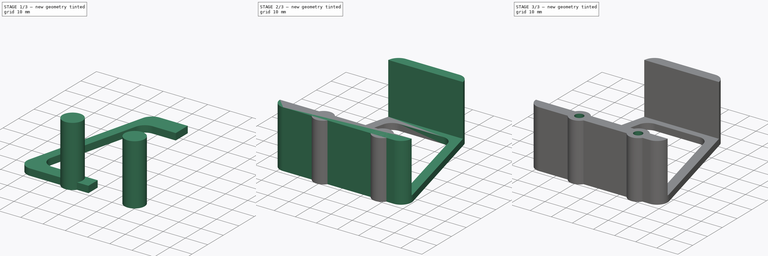
[diagram: build sequence overview — one tinted view per stage of 3, left to right]
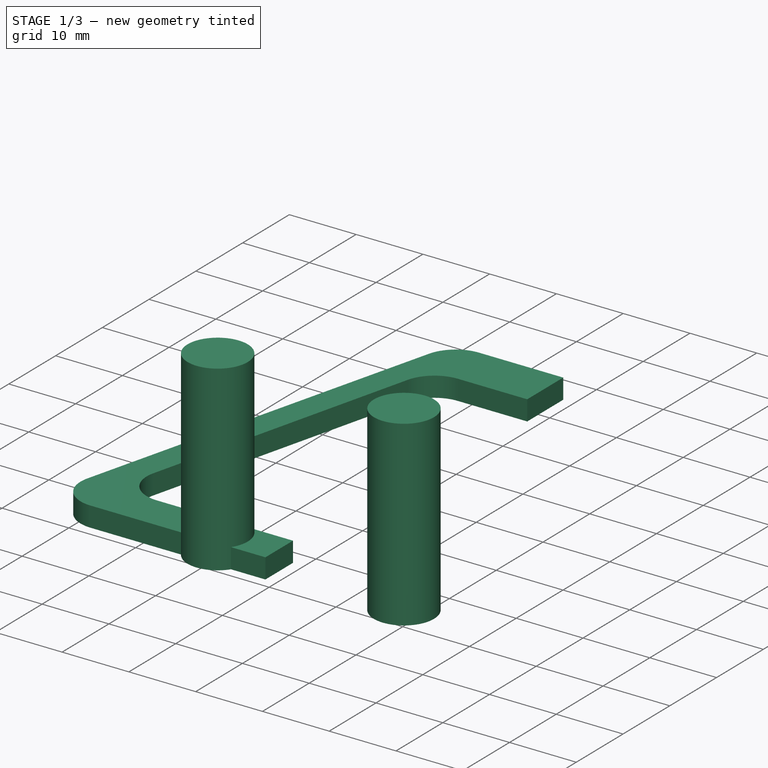
[diagram: stage 1 of 3 — iso view after this stage's code; geometry added in this stage tinted green]
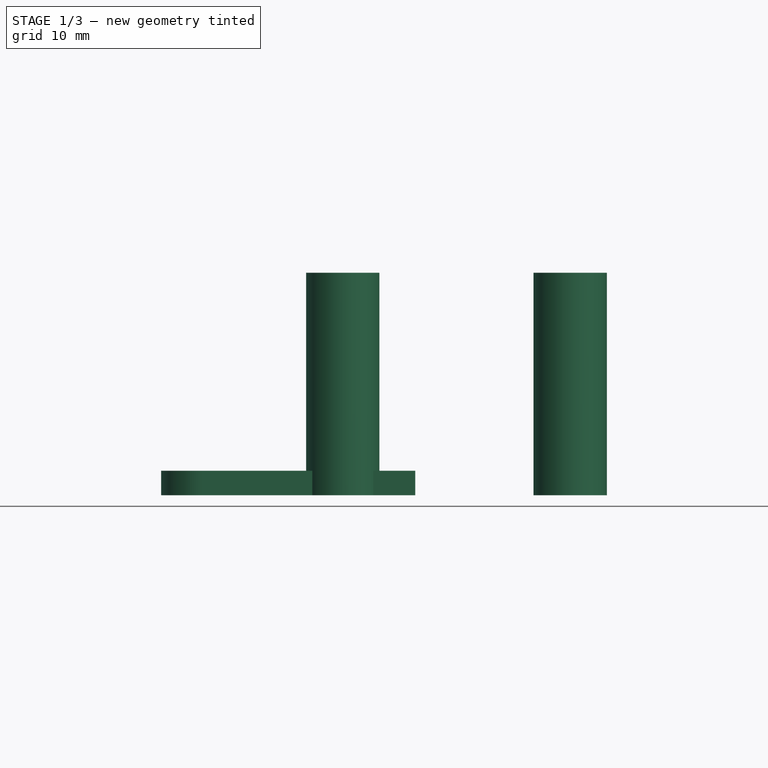
[diagram: stage 1 of 3 — front view after this stage's code; geometry added in this stage tinted green]
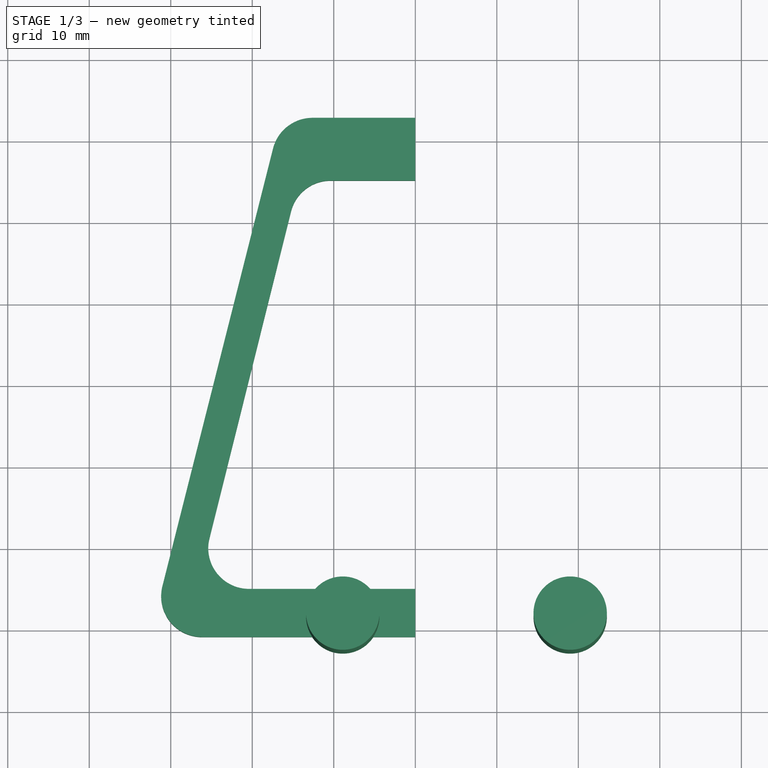
[diagram: stage 1 of 3 — top view after this stage's code; geometry added in this stage tinted green]
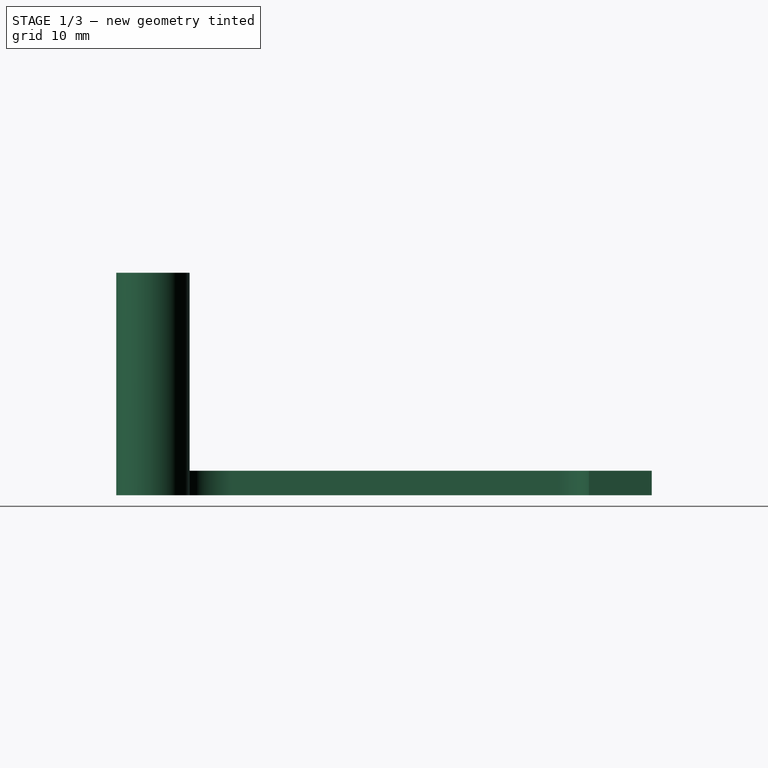
[diagram: stage 1 of 3 — right view after this stage's code; geometry added in this stage tinted green]
FCSTD DOCUMENT  (FreeCAD 0.15R4544 (Git))
Label: test
License: CC-BY 3.0
LicenseURL: http://creativecommons.org/licenses/by/3.0/
objects: Sketcher::SketchObject×4, PartDesign::Pad×3, Part::MultiFuse×2, Part::Feature×2, Part::Mirroring×1, PartDesign::Pocket×1
note: 17 computed .brp shape members not serialized (recipe doc carries the construction recipe); baked Part::Feature solids carry a one-line shape summary decoded from their .brp

FEATURE [Sketcher::SketchObject] Sketch  label="half-base-sketch"
  sketch-geometry (18):
    g0: LineSegment [constr] StartX=0 StartY=-30.8 StartZ=0 EndX=-32.6 EndY=-30.8 EndZ=0
    g1: LineSegment [constr] StartX=-32.6 StartY=-30.8 StartZ=0 EndX=-16.5 EndY=32.9 EndZ=0
    g2: LineSegment [constr] StartX=-16.5 StartY=32.9 StartZ=0 EndX=0 EndY=32.9 EndZ=0
    g3: LineSegment StartX=0 StartY=-30.8 StartZ=0 EndX=-26.179 EndY=-30.8 EndZ=0
    g4: LineSegment StartX=-31.0266 StartY=-24.5748 StartZ=0 EndX=-17.4541 EndY=29.1252 EndZ=0
    g5: LineSegment StartX=-12.6065 StartY=32.9 StartZ=0 EndX=0 EndY=32.9 EndZ=0
    g6: ArcOfCircle CenterX=-12.6065 CenterY=27.9 CenterZ=0 NormalX=0 NormalY=0 NormalZ=1 Radius=5 StartAngle=1.5708 EndAngle=2.89403
    g7: ArcOfCircle CenterX=-26.179 CenterY=-25.8 CenterZ=0 NormalX=0 NormalY=0 NormalZ=1 Radius=5 StartAngle=2.89403 EndAngle=4.71239
    g8: LineSegment [constr] StartX=0 StartY=25.2 StartZ=0 EndX=-14.3 EndY=25.2 EndZ=0
    g9: LineSegment [constr] StartX=-14.3 StartY=25.2 StartZ=0 EndX=-26.8 EndY=-24.9 EndZ=0
    g10: LineSegment [constr] StartX=-26.8 StartY=-24.9 StartZ=0 EndX=0 EndY=-24.9 EndZ=0
    g11: LineSegment StartX=0 StartY=32.9 StartZ=0 EndX=0 EndY=25.2 EndZ=0
    g12: LineSegment StartX=0 StartY=25.2 StartZ=0 EndX=-10.3942 EndY=25.2 EndZ=0
    g13: LineSegment StartX=-15.2455 StartY=21.4104 StartZ=0 EndX=-25.2505 EndY=-18.6896 EndZ=0
    g14: LineSegment StartX=-20.3992 StartY=-24.9 StartZ=0 EndX=0 EndY=-24.9 EndZ=0
    g15: LineSegment StartX=0 StartY=-24.9 StartZ=0 EndX=0 EndY=-30.8 EndZ=0
    g16: ArcOfCircle CenterX=-10.3942 CenterY=20.2 CenterZ=0 NormalX=0 NormalY=0 NormalZ=1 Radius=5 StartAngle=1.5708 EndAngle=2.89708
    g17: ArcOfCircle CenterX=-20.3992 CenterY=-19.9 CenterZ=0 NormalX=0 NormalY=0 NormalZ=1 Radius=5 StartAngle=2.89708 EndAngle=4.71239
  constraints (49):
    c: Coincident(g0,g1)
    c: Coincident(g1,g2)
    c: Horizontal(g0)
    c: Horizontal(g2)
    c: PointOnObject(g2,g-2)
    c: DistanceX(g0) = -32.6
    c: DistanceX(g2) = 16.5
    c: DistanceY(g-1,g0) = -30.8
    c: Horizontal(g5)
    c: Horizontal(g3)
    c: Coincident(g3,g0)
    c: Coincident(g5,g2)
    c: Tangent(g4,g6)
    c: Tangent(g5,g6)
    c: Tangent(g3,g7)
    c: Tangent(g4,g7)
    c: PointOnObject(g4,g1)
    c: PointOnObject(g4,g1)
    c: Radius(g7) = 5
    c: Radius(g6) = 5
    c: DistanceY(g2,g0) = -63.7
    c: Coincident(g8,g9)
    c: Coincident(g9,g10)
    c: Horizontal(g8)
    c: Horizontal(g10)
    c: PointOnObject(g8,g-2)
    c: PointOnObject(g10,g-2)
    c: Vertical(g11)
    c: Coincident(g11,g2)
    c: Coincident(g11,g8)
    c: DistanceY(g11) = -7.7
    c: Coincident(g12,g8)
    c: Horizontal(g12)
    c: Horizontal(g14)
    c: DistanceY(g8,g10) = -50.1
    c: Coincident(g14,g10)
    c: Vertical(g15)
    c: Coincident(g15,g10)
    c: Coincident(g15,g0)
    c: Tangent(g12,g16)
    c: Tangent(g13,g16)
    c: Tangent(g13,g17)
    c: Tangent(g14,g17)
    c: DistanceX(g8) = -14.3
    c: DistanceX(g10) = 26.8
    c: PointOnObject(g13,g9)
    c: PointOnObject(g13,g9)
    c: Radius(g16) = 5
    c: Radius(g17) = 5
FEATURE [PartDesign::Pad] Pad  label="half-base"
  Length = 3
  Length2 = 100
  Sketch = -> Sketch
  Type = 0
FEATURE [Part::Feature] Pocket  label="renacuajo-chassis"
  Placement = pos=(0,17.3,27.3) rot=(0,0,1;3.14159rad)
  shape: bbox 83.6 x 117.6 x 41.4 mm, 171 faces (baked)
FEATURE [Sketcher::SketchObject] Sketch002  label="outer-cylinders-sketch"
  sketch-geometry (3):
    g0: LineSegment [constr] StartX=-8.9 StartY=-28.3 StartZ=0 EndX=19 EndY=-28.3 EndZ=0
    g1: Circle CenterX=-8.9 CenterY=-28.3 CenterZ=0 NormalX=0 NormalY=0 NormalZ=1 Radius=4.5
    g2: Circle CenterX=19 CenterY=-28.3 CenterZ=0 NormalX=0 NormalY=0 NormalZ=1 Radius=4.5
  constraints (8):
    c: Horizontal(g0)
    c: DistanceX(g0) = 27.9
    c: Equal(g2,g1)
    c: Radius(g1) = 4.5
    c: DistanceX(g0) = -8.9
    c: DistanceY(g0) = -28.3
    c: Coincident(g1,g0)
    c: Coincident(g2,g0)
FEATURE [PartDesign::Pad] Pad002  label="outer-cylinders"
  Length = 27.3
  Length2 = 100
  Sketch = -> Sketch002
  Type = 0
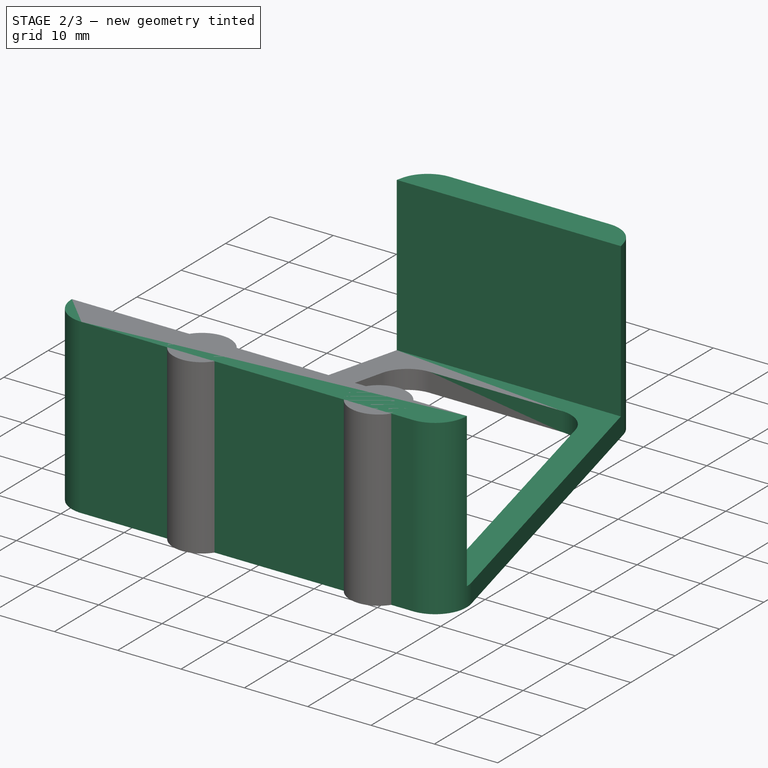
[diagram: stage 2 of 3 — iso view after this stage's code; geometry added in this stage tinted green]
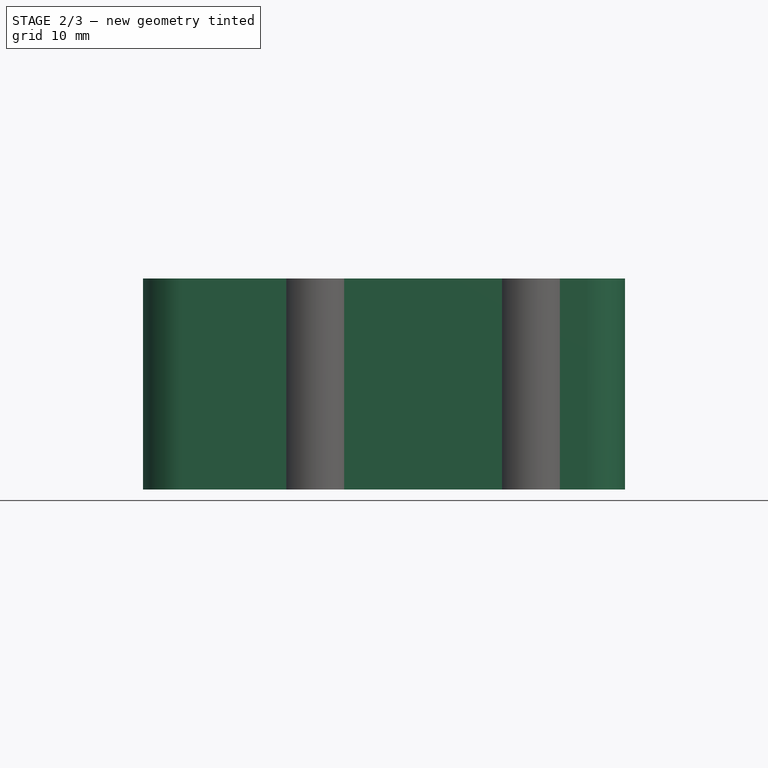
[diagram: stage 2 of 3 — front view after this stage's code; geometry added in this stage tinted green]
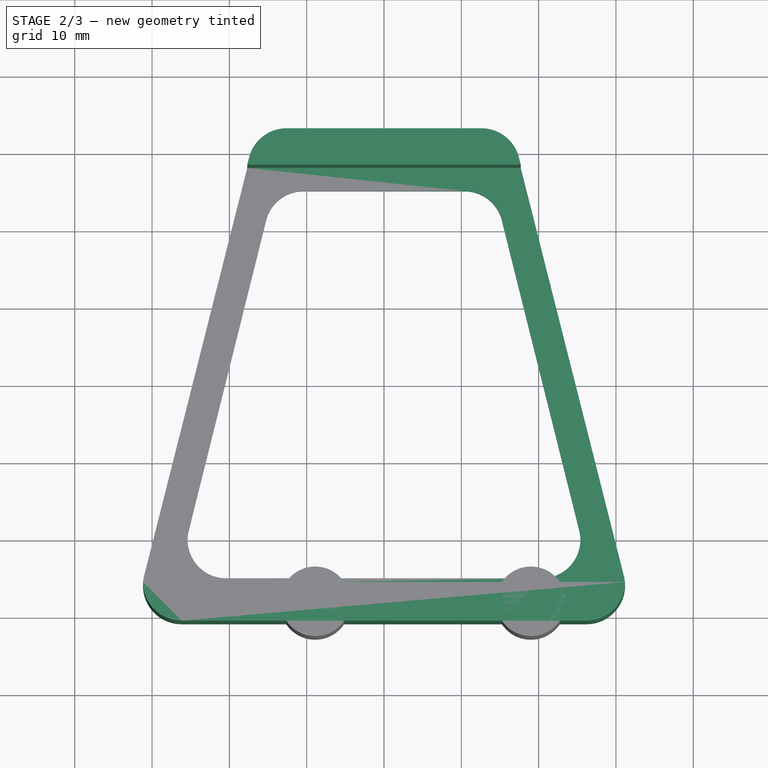
[diagram: stage 2 of 3 — top view after this stage's code; geometry added in this stage tinted green]
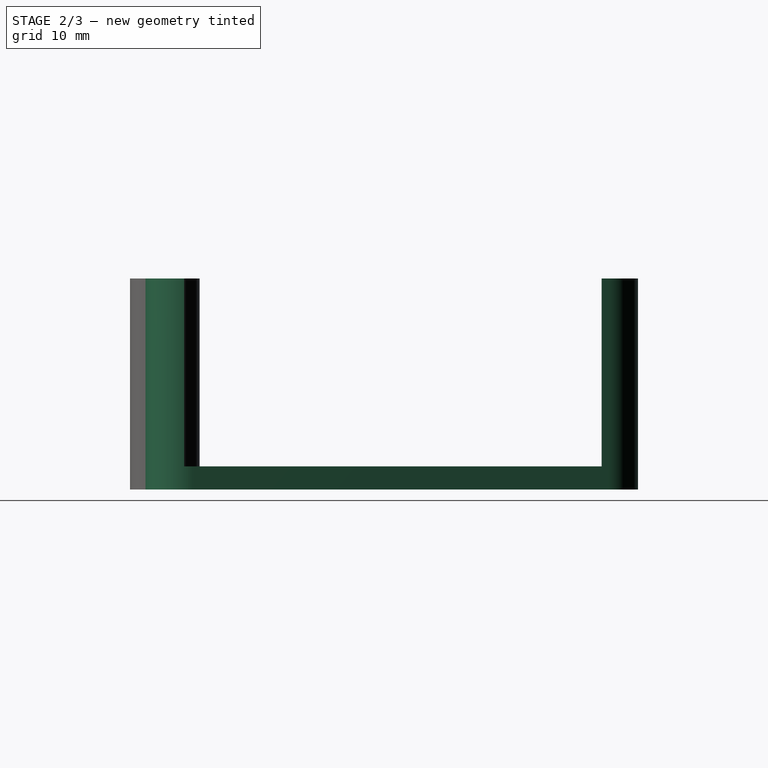
[diagram: stage 2 of 3 — right view after this stage's code; geometry added in this stage tinted green]
FEATURE [Sketcher::SketchObject] Sketch001  label="top-bottom-sketch"
  ExternalGeometry = -> [Pad]
  Placement = pos=(0,0,3) rot=(0,0,1;0rad)
  Support = -> Pad [Face14]
  sketch-geometry (9):
    g0: LineSegment StartX=-26.179 StartY=-30.8 StartZ=0 EndX=0 EndY=-30.8 EndZ=0
    g1: LineSegment StartX=0 StartY=-30.8 StartZ=0 EndX=0 EndY=-25.8 EndZ=0
    g2: LineSegment StartX=0 StartY=-25.8 StartZ=0 EndX=-31.179 EndY=-25.8 EndZ=0
    g3: ArcOfCircle CenterX=-26.179 CenterY=-25.8 CenterZ=0 NormalX=0 NormalY=0 NormalZ=1 Radius=5 StartAngle=3.14159 EndAngle=4.71239
    g4: LineSegment StartX=-17.6879 StartY=28.2 StartZ=0 EndX=0 EndY=28.2 EndZ=0
    g5: LineSegment StartX=-12.6065 StartY=32.9 StartZ=0 EndX=0 EndY=32.9 EndZ=0
    g6: ArcOfCircle CenterX=-12.6065 CenterY=27.9 CenterZ=0 NormalX=0 NormalY=0 NormalZ=1 Radius=5 StartAngle=1.5708 EndAngle=2.89403
    g7: LineSegment StartX=-17.4541 StartY=29.1252 StartZ=0 EndX=-17.6879 EndY=28.2 EndZ=0
    g8: LineSegment StartX=0 StartY=32.9 StartZ=0 EndX=0 EndY=28.2 EndZ=0
  constraints (27):
    c: Horizontal(g0)
    c: Coincident(g1,g2)
    c: Horizontal(g2)
    c: Vertical(g1)
    c: PointOnObject(g0,g-2)
    c: Coincident(g1,g0)
    c: PointOnObject(g2,g-3)
    c: Coincident(g0,g-4)
    c: Coincident(g3,g0)
    c: Coincident(g3,g2)
    c: Coincident(g3,g-3)
    c: DistanceY(g1) = 5
    c: Horizontal(g4)
    c: PointOnObject(g4,g-2)
    c: PointOnObject(g4,g-7)
    c: Horizontal(g5)
    c: PointOnObject(g5,g-2)
    c: Coincident(g6,g-5)
    c: Coincident(g6,g-7)
    c: Coincident(g6,g-6)
    c: Coincident(g7,g6)
    c: Coincident(g7,g4)
    c: Coincident(g5,g6)
    c: Vertical(g8)
    c: Coincident(g8,g5)
    c: Coincident(g8,g4)
    c: DistanceY(g8) = -4.7
FEATURE [PartDesign::Pad] Pad001  label="half-battery-holder"
  Length = 24.3
  Length2 = 100
  Sketch = -> Sketch001
  Type = 0
FEATURE [Part::Mirroring] Part__Mirroring  label="half-battery-holder (Mirror #1)"
  Base = (0,0,0)
  Normal = (1,0,0)
  Source = -> Pad001
FEATURE [Part::MultiFuse] Fusion  label="battery-holder-body"
  Shapes = -> [Part__Mirroring,Pad001]
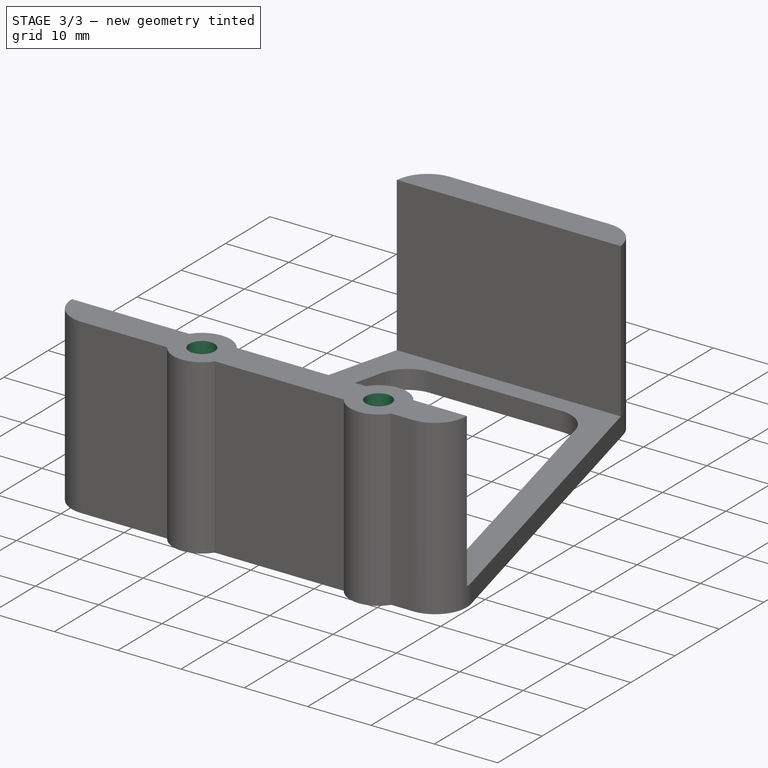
[diagram: stage 3 of 3 — iso view after this stage's code; geometry added in this stage tinted green]
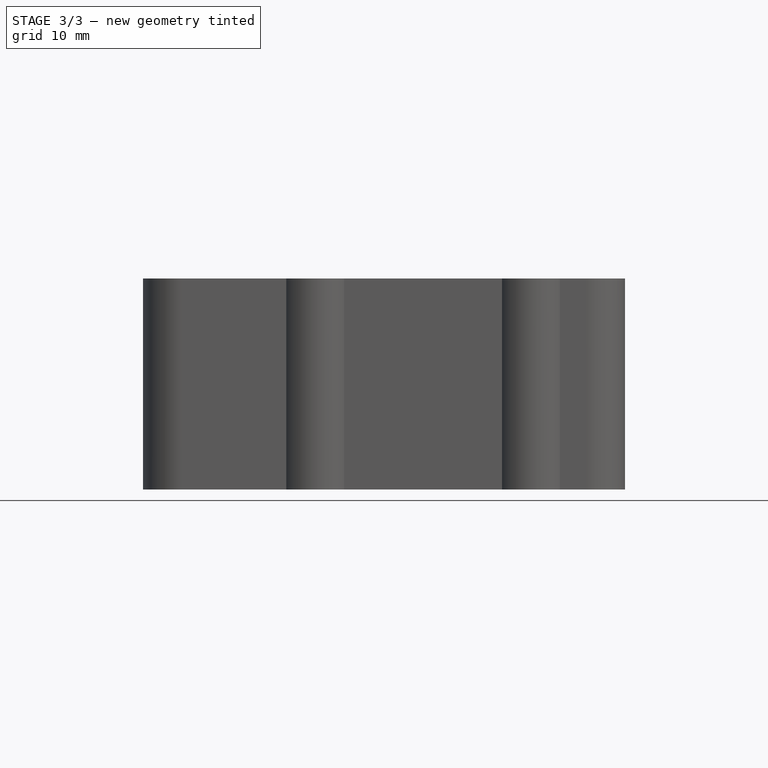
[diagram: stage 3 of 3 — front view after this stage's code; geometry added in this stage tinted green]
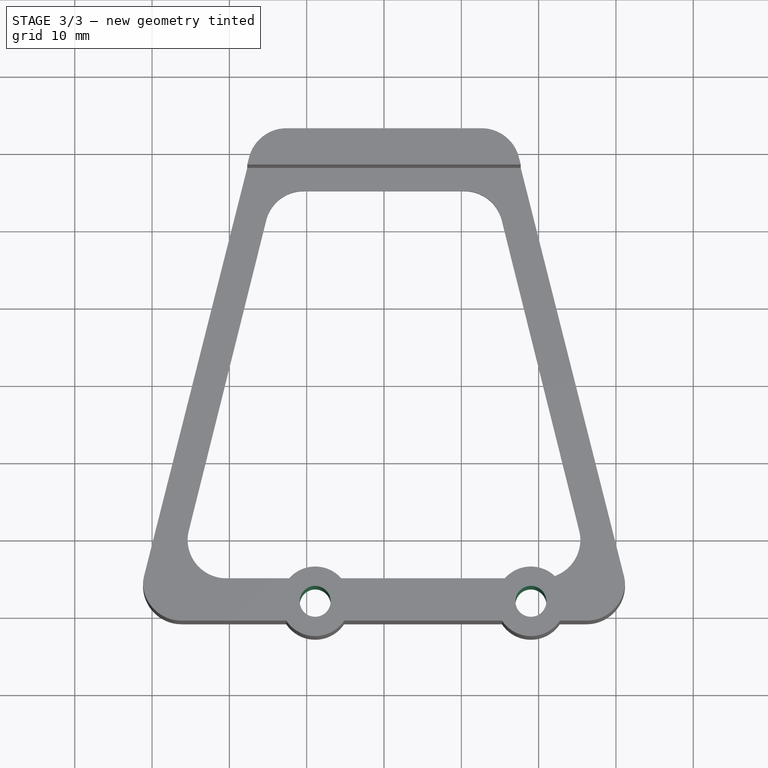
[diagram: stage 3 of 3 — top view after this stage's code; geometry added in this stage tinted green]
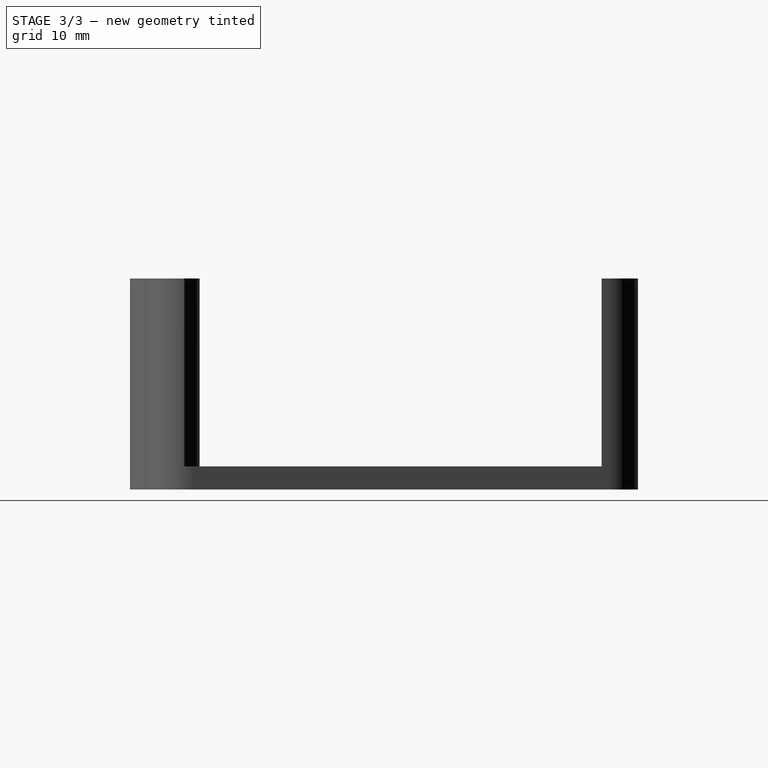
[diagram: stage 3 of 3 — right view after this stage's code; geometry added in this stage tinted green]
FEATURE [Part::MultiFuse] Fusion001  label="battery-holder-body-2"
  Shapes = -> [Pad002,Fusion]
FEATURE [Sketcher::SketchObject] Sketch003  label="drills-sketch"
  ExternalGeometry = -> [Fusion001]
  Placement = pos=(0,0,27.3) rot=(0,0,1;0rad)
  Support = -> Fusion001 [Face34]
  sketch-geometry (2):
    g0: Circle CenterX=-8.9 CenterY=-28.3 CenterZ=0 NormalX=0 NormalY=0 NormalZ=1 Radius=2
    g1: Circle CenterX=19 CenterY=-28.3 CenterZ=0 NormalX=0 NormalY=0 NormalZ=1 Radius=2
  constraints (4):
    c: Coincident(g0,g-3)
    c: Coincident(g1,g-4)
    c: Equal(g0,g1)
    c: Radius(g0) = 2
FEATURE [PartDesign::Pocket] Pocket001  label="drills"
  Length = 5
  Sketch = -> Sketch003
  Type = 1
FEATURE [Part::Feature] Pocket001001  label="renacuajo-battery-holder-final"
  shape: bbox 62.36 x 65.7 x 27.3 mm, 36 faces (baked)
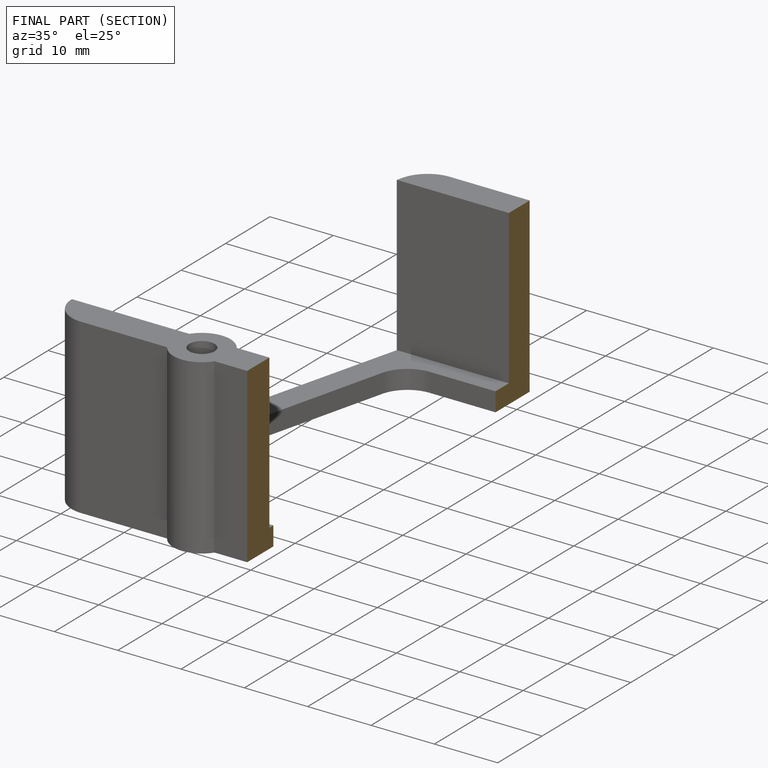
[diagram: finished part — half-section view (interior)]
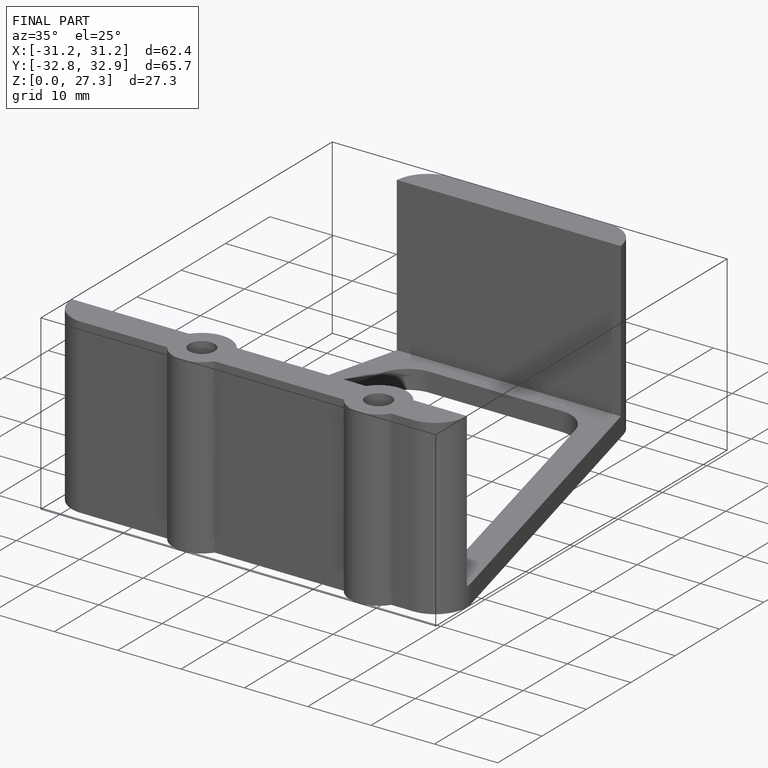
[diagram: finished part — iso view with bounding-box wireframe]
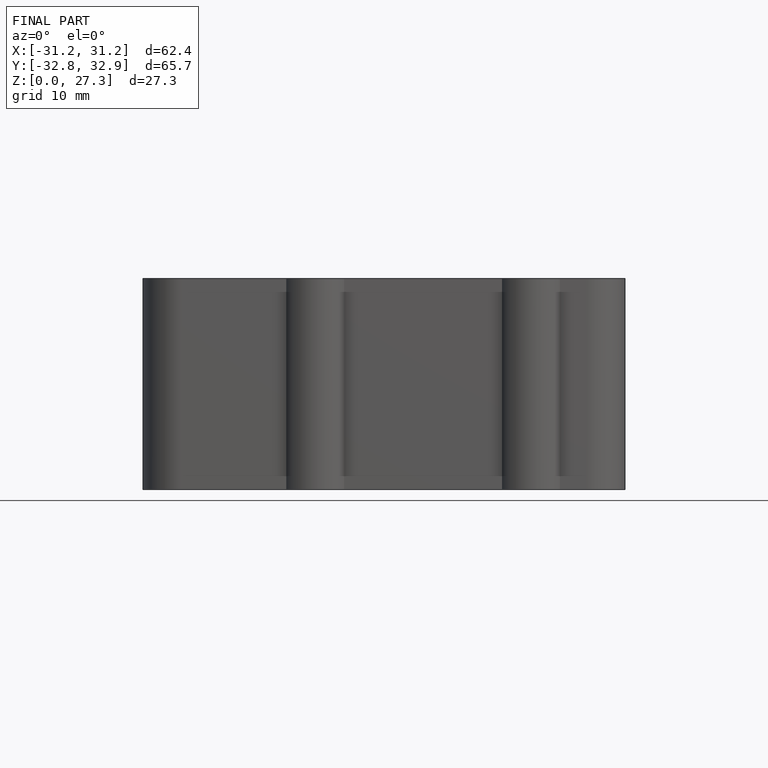
[diagram: finished part — front view with bounding-box wireframe]
